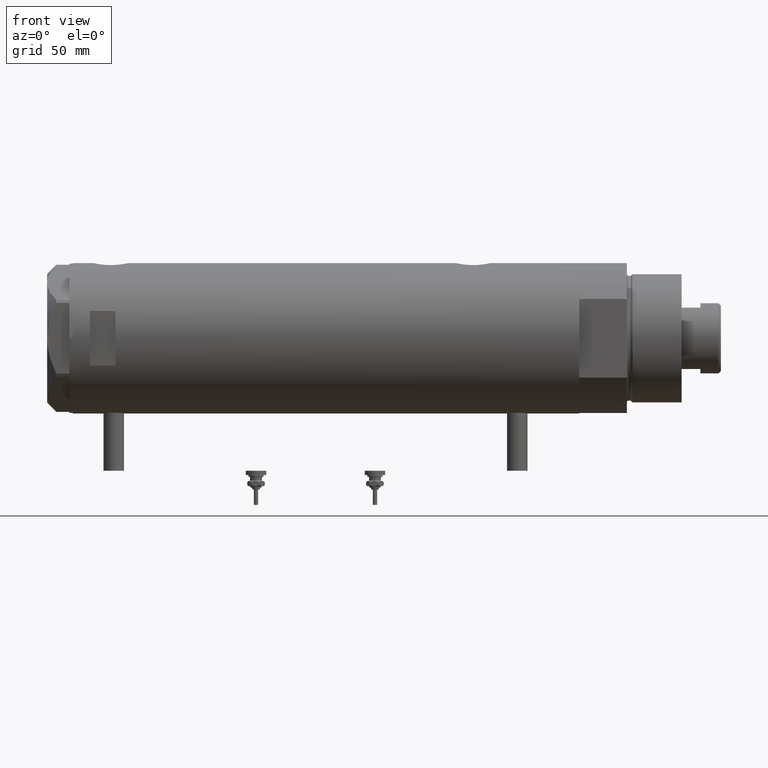
[diagram: clean part render]
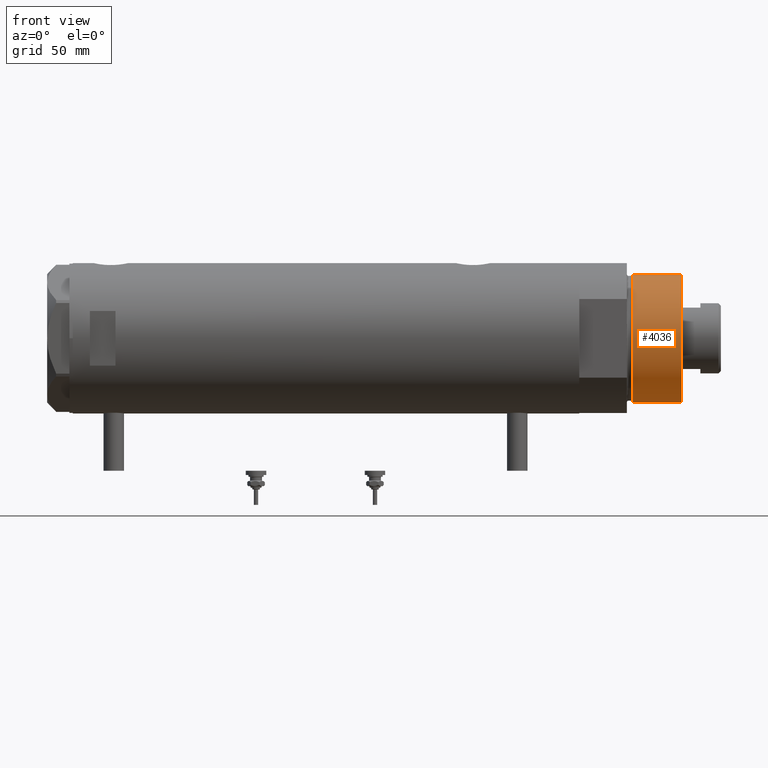
[diagram: same view with one face highlighted and labeled with its STEP entity id]
A machine part, front view. The second image highlights one B-rep face of the part: STEP entity #4036.
In plain terms, the highlighted cylindrical surface (partial cylindrical patch) has radius 37.5 mm, axis along (-1, -0, 0).
Its self-contained STEP definition (entity closure, byte-faithful):
#185 = DIRECTION ( 'NONE',  ( 1.000000000000000000, 0.000000000000000000, 0.000000000000000000 ) ) ;
#561 = CARTESIAN_POINT ( 'NONE',  ( 37.50000000000000711, 4.592425496802575156E-15, 31.27384048104054415 ) ) ;
#571 = VERTEX_POINT ( 'NONE', #918 ) ;
#574 = DIRECTION ( 'NONE',  ( 1.000000000000000000, 0.000000000000000000, 0.000000000000000000 ) ) ;
#796 = VERTEX_POINT ( 'NONE', #5987 ) ;
#846 = EDGE_CURVE ( 'NONE', #796, #5859, #3249, .T. ) ;
#878 = ORIENTED_EDGE ( 'NONE', *, *, #1686, .F. ) ;
#896 = EDGE_LOOP ( 'NONE', ( #878, #5535, #4920, #5676 ) ) ;
#918 = CARTESIAN_POINT ( 'NONE',  ( 37.50000000000000711, 4.592425496802575156E-15, 59.89999999999999147 ) ) ;
#1107 = CARTESIAN_POINT ( 'NONE',  ( -37.50000000000000711, 0.000000000000000000, 31.27384048104054415 ) ) ;
#1152 = CARTESIAN_POINT ( 'NONE',  ( 0.000000000000000000, 0.000000000000000000, 59.89999999999999147 ) ) ;
#1303 = CYLINDRICAL_SURFACE ( 'NONE', #4189, 37.50000000000000711 ) ;
#1586 = LINE ( 'NONE', #2928, #3408 ) ;
#1686 = EDGE_CURVE ( 'NONE', #571, #4348, #1586, .T. ) ;
#1942 = DIRECTION ( 'NONE',  ( -0.000000000000000000, -0.000000000000000000, -1.000000000000000000 ) ) ;
#2356 = DIRECTION ( 'NONE',  ( -0.000000000000000000, -0.000000000000000000, -1.000000000000000000 ) ) ;
#2732 = EDGE_CURVE ( 'NONE', #796, #571, #5696, .T. ) ;
#2928 = CARTESIAN_POINT ( 'NONE',  ( 37.50000000000000711, 4.592425496802575156E-15, 59.89999999999999147 ) ) ;
#2969 = CIRCLE ( 'NONE', #4429, 37.50000000000000711 ) ;
#3006 = DIRECTION ( 'NONE',  ( 0.000000000000000000, 0.000000000000000000, 1.000000000000000000 ) ) ;
#3031 = VECTOR ( 'NONE', #2356, 1000.000000000000000 ) ;
#3160 = CARTESIAN_POINT ( 'NONE',  ( 0.000000000000000000, 0.000000000000000000, 59.89999999999999147 ) ) ;
#3249 = LINE ( 'NONE', #4694, #3031 ) ;
#3408 = VECTOR ( 'NONE', #1942, 1000.000000000000000 ) ;
#3696 = AXIS2_PLACEMENT_3D ( 'NONE', #1152, #3006, #185 ) ;
#4036 = ADVANCED_FACE ( 'NONE', ( #4342 ), #1303, .T. ) ;
#4189 = AXIS2_PLACEMENT_3D ( 'NONE', #3160, #4977, #5041 ) ;
#4342 = FACE_OUTER_BOUND ( 'NONE', #896, .T. ) ;
#4348 = VERTEX_POINT ( 'NONE', #561 ) ;
#4429 = AXIS2_PLACEMENT_3D ( 'NONE', #5299, #4740, #574 ) ;
#4694 = CARTESIAN_POINT ( 'NONE',  ( -37.50000000000000711, 0.000000000000000000, 59.89999999999999147 ) ) ;
#4740 = DIRECTION ( 'NONE',  ( -0.000000000000000000, -0.000000000000000000, 1.000000000000000000 ) ) ;
#4920 = ORIENTED_EDGE ( 'NONE', *, *, #846, .T. ) ;
#4977 = DIRECTION ( 'NONE',  ( -0.000000000000000000, -0.000000000000000000, -1.000000000000000000 ) ) ;
#5041 = DIRECTION ( 'NONE',  ( -1.000000000000000000, 0.000000000000000000, 0.000000000000000000 ) ) ;
#5299 = CARTESIAN_POINT ( 'NONE',  ( 0.000000000000000000, 0.000000000000000000, 31.27384048104054415 ) ) ;
#5535 = ORIENTED_EDGE ( 'NONE', *, *, #2732, .F. ) ;
#5676 = ORIENTED_EDGE ( 'NONE', *, *, #5903, .T. ) ;
#5696 = CIRCLE ( 'NONE', #3696, 37.50000000000000711 ) ;
#5859 = VERTEX_POINT ( 'NONE', #1107 ) ;
#5903 = EDGE_CURVE ( 'NONE', #5859, #4348, #2969, .T. ) ;
#5987 = CARTESIAN_POINT ( 'NONE',  ( -37.50000000000000711, 0.000000000000000000, 59.89999999999999147 ) ) ;